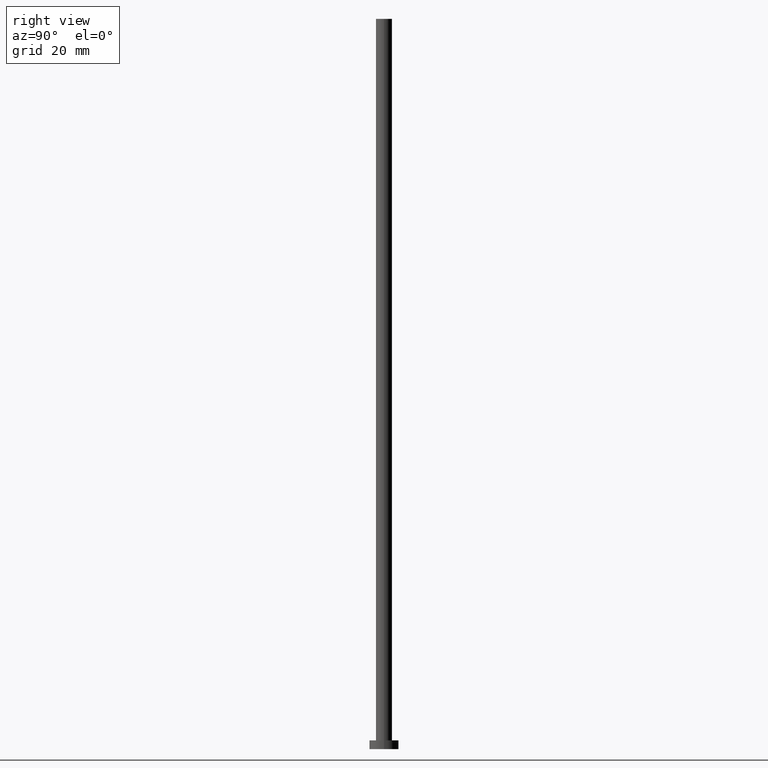
[diagram: clean part render]
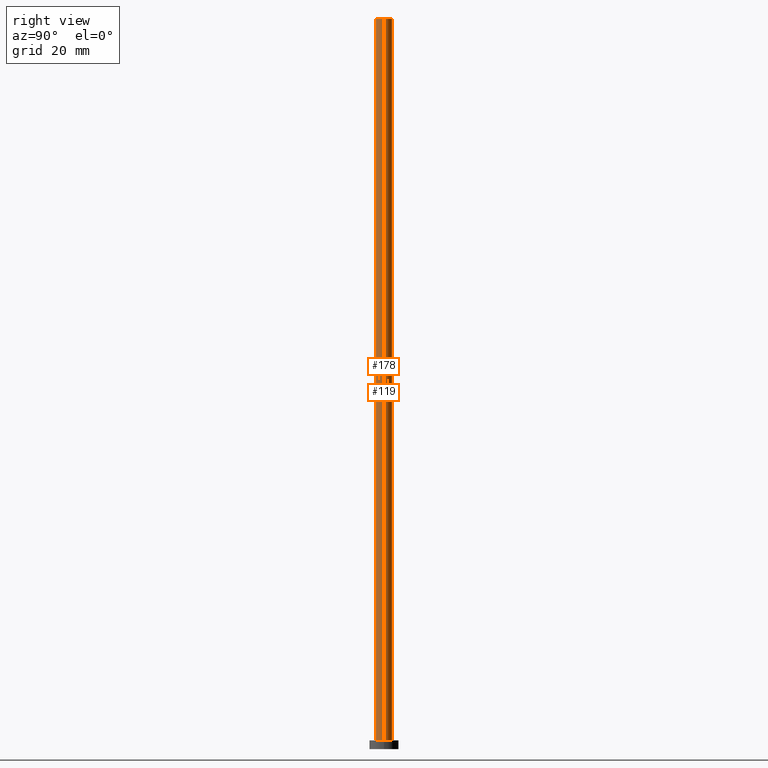
[diagram: same view with one multi-face feature highlighted, each face labeled with its STEP entity id]
A machine part, right view. The highlighted faces form ONE feature: a constant-radius fillet chain: 2 tangent blend faces with common blend radius 2.75 mm. The faces share edges in the B-rep.
Their STEP definitions:
[1] entity #119 (Cylinder):
#3 = VECTOR ( 'NONE', #37, 1000.000000000000000 ) ;
#14 = CARTESIAN_POINT ( 'NONE',  ( -2.750000000000000000, 0.000000000000000000, 3.000000000000000000 ) ) ;
#21 = CIRCLE ( 'NONE', #110, 2.750000000000000000 ) ;
#24 = ORIENTED_EDGE ( 'NONE', *, *, #209, .F. ) ;
#35 = CARTESIAN_POINT ( 'NONE',  ( -2.750000000000000000, 0.000000000000000000, 250.0000000000000000 ) ) ;
#37 = DIRECTION ( 'NONE',  ( -0.000000000000000000, -0.000000000000000000, -1.000000000000000000 ) ) ;
#38 = LINE ( 'NONE', #60, #40 ) ;
#40 = VECTOR ( 'NONE', #140, 1000.000000000000000 ) ;
#55 = CIRCLE ( 'NONE', #57, 2.750000000000000000 ) ;
#57 = AXIS2_PLACEMENT_3D ( 'NONE', #118, #227, #59 ) ;
#59 = DIRECTION ( 'NONE',  ( 1.000000000000000000, 0.000000000000000000, 0.000000000000000000 ) ) ;
#60 = CARTESIAN_POINT ( 'NONE',  ( 2.750000000000000000, 3.367778697655221012E-16, 250.0000000000000000 ) ) ;
#80 = CARTESIAN_POINT ( 'NONE',  ( 0.000000000000000000, 0.000000000000000000, 3.000000000000000000 ) ) ;
#81 = CARTESIAN_POINT ( 'NONE',  ( 2.750000000000000000, 3.367778697655221012E-16, 250.0000000000000000 ) ) ;
#96 = FACE_OUTER_BOUND ( 'NONE', #170, .T. ) ;
#110 = AXIS2_PLACEMENT_3D ( 'NONE', #80, #249, #120 ) ;
#118 = CARTESIAN_POINT ( 'NONE',  ( 0.000000000000000000, 0.000000000000000000, 250.0000000000000000 ) ) ;
#119 = ADVANCED_FACE ( 'NONE', ( #96 ), #174, .T. ) ;
#120 = DIRECTION ( 'NONE',  ( 1.000000000000000000, 0.000000000000000000, 0.000000000000000000 ) ) ;
#129 = EDGE_CURVE ( 'NONE', #204, #185, #225, .T. ) ;
#140 = DIRECTION ( 'NONE',  ( -0.000000000000000000, -0.000000000000000000, -1.000000000000000000 ) ) ;
#142 = CARTESIAN_POINT ( 'NONE',  ( 0.000000000000000000, 0.000000000000000000, 250.0000000000000000 ) ) ;
#150 = VERTEX_POINT ( 'NONE', #195 ) ;
#156 = DIRECTION ( 'NONE',  ( -1.000000000000000000, 0.000000000000000000, 0.000000000000000000 ) ) ;
#170 = EDGE_LOOP ( 'NONE', ( #24, #237, #223, #193 ) ) ;
#172 = VERTEX_POINT ( 'NONE', #81 ) ;
#173 = EDGE_CURVE ( 'NONE', #150, #185, #21, .T. ) ;
#174 = CYLINDRICAL_SURFACE ( 'NONE', #235, 2.750000000000000000 ) ;
#185 = VERTEX_POINT ( 'NONE', #14 ) ;
#193 = ORIENTED_EDGE ( 'NONE', *, *, #129, .F. ) ;
#195 = CARTESIAN_POINT ( 'NONE',  ( 2.750000000000000000, 3.367778697655221012E-16, 3.000000000000000000 ) ) ;
#204 = VERTEX_POINT ( 'NONE', #250 ) ;
#209 = EDGE_CURVE ( 'NONE', #172, #204, #55, .T. ) ;
#223 = ORIENTED_EDGE ( 'NONE', *, *, #173, .T. ) ;
#225 = LINE ( 'NONE', #35, #3 ) ;
#227 = DIRECTION ( 'NONE',  ( 0.000000000000000000, 0.000000000000000000, 1.000000000000000000 ) ) ;
#235 = AXIS2_PLACEMENT_3D ( 'NONE', #142, #247, #156 ) ;
#237 = ORIENTED_EDGE ( 'NONE', *, *, #239, .T. ) ;
#239 = EDGE_CURVE ( 'NONE', #172, #150, #38, .T. ) ;
#247 = DIRECTION ( 'NONE',  ( -0.000000000000000000, -0.000000000000000000, -1.000000000000000000 ) ) ;
#249 = DIRECTION ( 'NONE',  ( 0.000000000000000000, 0.000000000000000000, 1.000000000000000000 ) ) ;
#250 = CARTESIAN_POINT ( 'NONE',  ( -2.750000000000000000, 0.000000000000000000, 250.0000000000000000 ) ) ;
[2] entity #178 (Cylinder):
#3 = VECTOR ( 'NONE', #37, 1000.000000000000000 ) ;
#10 = ORIENTED_EDGE ( 'NONE', *, *, #129, .T. ) ;
#14 = CARTESIAN_POINT ( 'NONE',  ( -2.750000000000000000, 0.000000000000000000, 3.000000000000000000 ) ) ;
#16 = DIRECTION ( 'NONE',  ( -1.000000000000000000, 0.000000000000000000, 0.000000000000000000 ) ) ;
#34 = AXIS2_PLACEMENT_3D ( 'NONE', #229, #99, #62 ) ;
#35 = CARTESIAN_POINT ( 'NONE',  ( -2.750000000000000000, 0.000000000000000000, 250.0000000000000000 ) ) ;
#37 = DIRECTION ( 'NONE',  ( -0.000000000000000000, -0.000000000000000000, -1.000000000000000000 ) ) ;
#38 = LINE ( 'NONE', #60, #40 ) ;
#40 = VECTOR ( 'NONE', #140, 1000.000000000000000 ) ;
#50 = CIRCLE ( 'NONE', #200, 2.750000000000000000 ) ;
#58 = FACE_OUTER_BOUND ( 'NONE', #202, .T. ) ;
#60 = CARTESIAN_POINT ( 'NONE',  ( 2.750000000000000000, 3.367778697655221012E-16, 250.0000000000000000 ) ) ;
#62 = DIRECTION ( 'NONE',  ( 1.000000000000000000, 0.000000000000000000, 0.000000000000000000 ) ) ;
#75 = ORIENTED_EDGE ( 'NONE', *, *, #239, .F. ) ;
#81 = CARTESIAN_POINT ( 'NONE',  ( 2.750000000000000000, 3.367778697655221012E-16, 250.0000000000000000 ) ) ;
#99 = DIRECTION ( 'NONE',  ( 0.000000000000000000, 0.000000000000000000, 1.000000000000000000 ) ) ;
#126 = AXIS2_PLACEMENT_3D ( 'NONE', #157, #138, #16 ) ;
#129 = EDGE_CURVE ( 'NONE', #204, #185, #225, .T. ) ;
#138 = DIRECTION ( 'NONE',  ( -0.000000000000000000, -0.000000000000000000, -1.000000000000000000 ) ) ;
#140 = DIRECTION ( 'NONE',  ( -0.000000000000000000, -0.000000000000000000, -1.000000000000000000 ) ) ;
#150 = VERTEX_POINT ( 'NONE', #195 ) ;
#157 = CARTESIAN_POINT ( 'NONE',  ( 0.000000000000000000, 0.000000000000000000, 250.0000000000000000 ) ) ;
#159 = DIRECTION ( 'NONE',  ( 1.000000000000000000, 0.000000000000000000, 0.000000000000000000 ) ) ;
#166 = ORIENTED_EDGE ( 'NONE', *, *, #197, .F. ) ;
#172 = VERTEX_POINT ( 'NONE', #81 ) ;
#178 = ADVANCED_FACE ( 'NONE', ( #58 ), #215, .T. ) ;
#185 = VERTEX_POINT ( 'NONE', #14 ) ;
#187 = ORIENTED_EDGE ( 'NONE', *, *, #232, .T. ) ;
#195 = CARTESIAN_POINT ( 'NONE',  ( 2.750000000000000000, 3.367778697655221012E-16, 3.000000000000000000 ) ) ;
#197 = EDGE_CURVE ( 'NONE', #204, #172, #246, .T. ) ;
#200 = AXIS2_PLACEMENT_3D ( 'NONE', #213, #228, #159 ) ;
#202 = EDGE_LOOP ( 'NONE', ( #75, #166, #10, #187 ) ) ;
#204 = VERTEX_POINT ( 'NONE', #250 ) ;
#213 = CARTESIAN_POINT ( 'NONE',  ( 0.000000000000000000, 0.000000000000000000, 3.000000000000000000 ) ) ;
#215 = CYLINDRICAL_SURFACE ( 'NONE', #126, 2.750000000000000000 ) ;
#225 = LINE ( 'NONE', #35, #3 ) ;
#228 = DIRECTION ( 'NONE',  ( 0.000000000000000000, 0.000000000000000000, 1.000000000000000000 ) ) ;
#229 = CARTESIAN_POINT ( 'NONE',  ( 0.000000000000000000, 0.000000000000000000, 250.0000000000000000 ) ) ;
#232 = EDGE_CURVE ( 'NONE', #185, #150, #50, .T. ) ;
#239 = EDGE_CURVE ( 'NONE', #172, #150, #38, .T. ) ;
#246 = CIRCLE ( 'NONE', #34, 2.750000000000000000 ) ;
#250 = CARTESIAN_POINT ( 'NONE',  ( -2.750000000000000000, 0.000000000000000000, 250.0000000000000000 ) ) ;